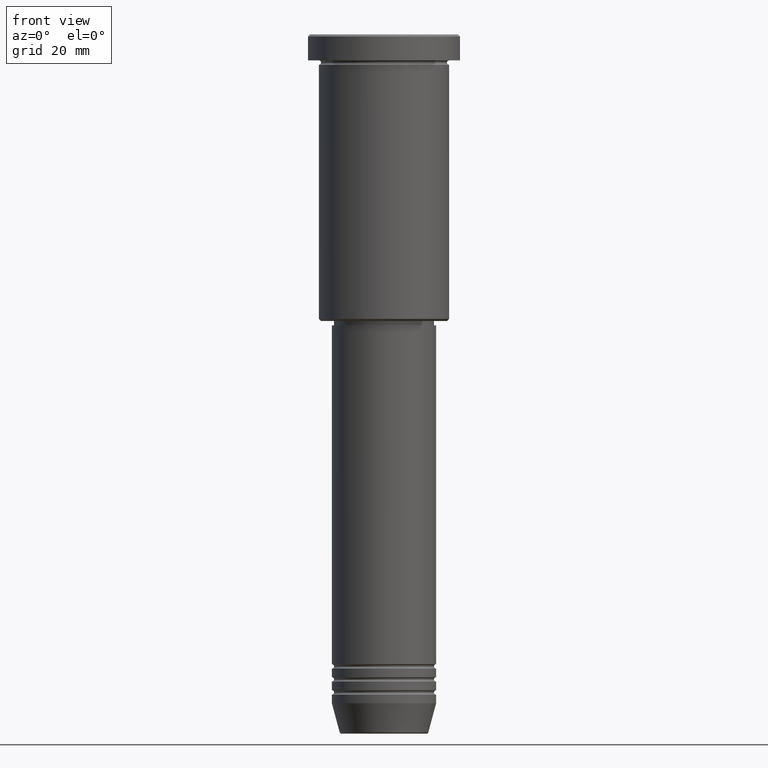
[diagram: clean part render]
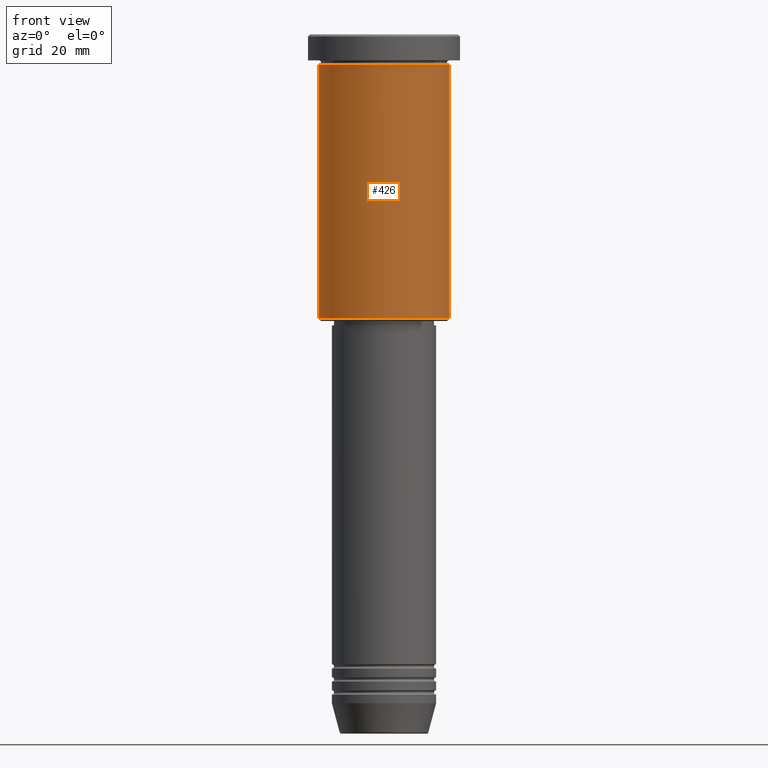
[diagram: same view with one face highlighted and labeled with its STEP entity id]
A machine part, front view. The second image highlights one B-rep face of the part: STEP entity #426.
In plain terms, the highlighted cylindrical surface (partial cylindrical patch) has radius 15 mm, axis along (-0, -0, 1).
Its self-contained STEP definition (entity closure, byte-faithful):
#2 = CARTESIAN_POINT ( 'NONE',  ( 15.00000000000000000, 0.000000000000000000, 0.000000000000000000 ) ) ;
#5 = DIRECTION ( 'NONE',  ( -0.000000000000000000, -0.000000000000000000, 1.000000000000000000 ) ) ;
#11 = DIRECTION ( 'NONE',  ( -0.000000000000000000, -0.000000000000000000, 1.000000000000000000 ) ) ;
#114 = CARTESIAN_POINT ( 'NONE',  ( 15.00000000000000000, 0.000000000000000000, -6.999999999999995559 ) ) ;
#146 = VERTEX_POINT ( 'NONE', #947 ) ;
#181 = ORIENTED_EDGE ( 'NONE', *, *, #1097, .T. ) ;
#200 = DIRECTION ( 'NONE',  ( -1.000000000000000000, 0.000000000000000000, 0.000000000000000000 ) ) ;
#242 = DIRECTION ( 'NONE',  ( 1.000000000000000000, 0.000000000000000000, 0.000000000000000000 ) ) ;
#251 = VECTOR ( 'NONE', #5, 1000.000000000000000 ) ;
#315 = CARTESIAN_POINT ( 'NONE',  ( 0.000000000000000000, 0.000000000000000000, -6.999999999999995559 ) ) ;
#334 = VECTOR ( 'NONE', #750, 1000.000000000000000 ) ;
#406 = ORIENTED_EDGE ( 'NONE', *, *, #672, .T. ) ;
#426 = ADVANCED_FACE ( 'NONE', ( #875 ), #790, .T. ) ;
#433 = CIRCLE ( 'NONE', #1172, 15.00000000000000000 ) ;
#457 = LINE ( 'NONE', #807, #251 ) ;
#476 = LINE ( 'NONE', #2, #334 ) ;
#477 = CARTESIAN_POINT ( 'NONE',  ( -15.00000000000000000, 1.836970198721029589E-15, -65.49999999999997158 ) ) ;
#511 = EDGE_CURVE ( 'NONE', #695, #714, #457, .T. ) ;
#513 = CARTESIAN_POINT ( 'NONE',  ( 0.000000000000000000, 0.000000000000000000, 0.000000000000000000 ) ) ;
#539 = AXIS2_PLACEMENT_3D ( 'NONE', #513, #1070, #242 ) ;
#572 = VERTEX_POINT ( 'NONE', #114 ) ;
#622 = EDGE_LOOP ( 'NONE', ( #666, #406, #181, #858 ) ) ;
#666 = ORIENTED_EDGE ( 'NONE', *, *, #511, .F. ) ;
#672 = EDGE_CURVE ( 'NONE', #695, #146, #1083, .T. ) ;
#680 = AXIS2_PLACEMENT_3D ( 'NONE', #759, #11, #200 ) ;
#687 = DIRECTION ( 'NONE',  ( -0.000000000000000000, -0.000000000000000000, 1.000000000000000000 ) ) ;
#695 = VERTEX_POINT ( 'NONE', #477 ) ;
#714 = VERTEX_POINT ( 'NONE', #1110 ) ;
#750 = DIRECTION ( 'NONE',  ( -0.000000000000000000, -0.000000000000000000, 1.000000000000000000 ) ) ;
#759 = CARTESIAN_POINT ( 'NONE',  ( 0.000000000000000000, 0.000000000000000000, -65.49999999999997158 ) ) ;
#790 = CYLINDRICAL_SURFACE ( 'NONE', #539, 15.00000000000000000 ) ;
#807 = CARTESIAN_POINT ( 'NONE',  ( -15.00000000000000000, 1.836970198721029589E-15, 0.000000000000000000 ) ) ;
#858 = ORIENTED_EDGE ( 'NONE', *, *, #860, .F. ) ;
#860 = EDGE_CURVE ( 'NONE', #714, #572, #433, .T. ) ;
#870 = DIRECTION ( 'NONE',  ( 1.000000000000000000, 0.000000000000000000, 0.000000000000000000 ) ) ;
#875 = FACE_OUTER_BOUND ( 'NONE', #622, .T. ) ;
#947 = CARTESIAN_POINT ( 'NONE',  ( 15.00000000000000000, 0.000000000000000000, -65.49999999999997158 ) ) ;
#1070 = DIRECTION ( 'NONE',  ( -0.000000000000000000, -0.000000000000000000, 1.000000000000000000 ) ) ;
#1083 = CIRCLE ( 'NONE', #680, 15.00000000000000000 ) ;
#1097 = EDGE_CURVE ( 'NONE', #146, #572, #476, .T. ) ;
#1110 = CARTESIAN_POINT ( 'NONE',  ( -15.00000000000000000, 1.836970198721029589E-15, -6.999999999999995559 ) ) ;
#1172 = AXIS2_PLACEMENT_3D ( 'NONE', #315, #687, #870 ) ;